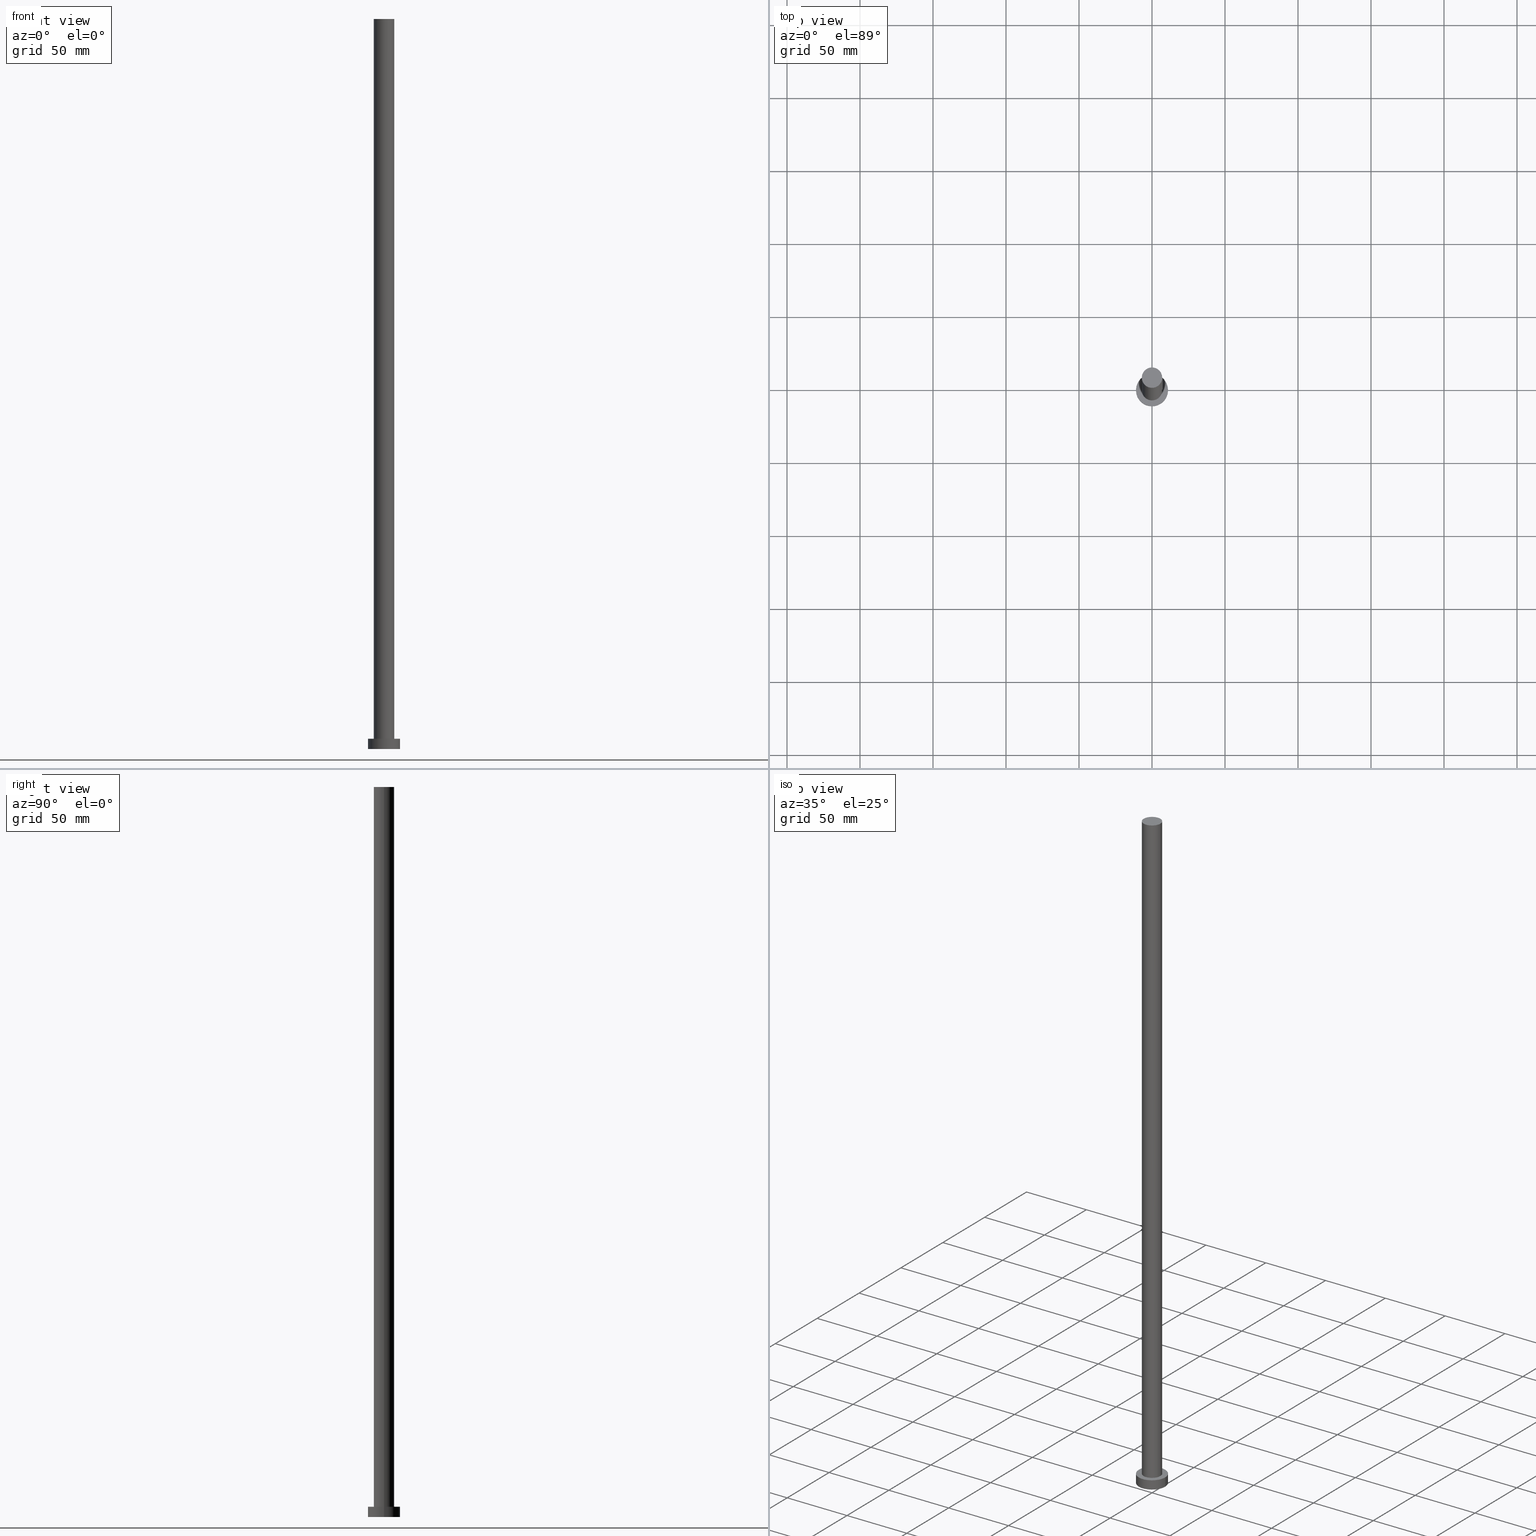
[diagram: canonical four-view strip — front | top / right | iso, engineering-drawing reading convention]
A machine part, canonical four-view strip (front | top / right | iso — engineering-drawing reading convention). The complete STEP part file that produces these views, byte-faithful:
ISO-10303-21;
HEADER;
FILE_DESCRIPTION (( 'STEP AP203' ),
    '1' );
FILE_NAME ('4721.STEP',
    '2023-02-13T10:35:01',
    ( '' ),
    ( '' ),
    'SwSTEP 2.0',
    'SolidWorks 2019',
    '' );
FILE_SCHEMA (( 'CONFIG_CONTROL_DESIGN' ));
ENDSEC;

DATA;
#1 = APPROVAL_PERSON_ORGANIZATION ( #121, #88, #105 ) ;
#2 = EDGE_LOOP ( 'NONE', ( #104, #236, #153, #157 ) ) ;
#3 = APPROVAL_DATE_TIME ( #178, #88 ) ;
#4 = CARTESIAN_POINT ( 'NONE',  ( 11.00000000000000000, 1.347111479062088405E-15, 7.000000000000000000 ) ) ;
#5 = ORIENTED_EDGE ( 'NONE', *, *, #124, .F. ) ;
#6 = APPROVAL_STATUS ( 'not_yet_approved' ) ;
#7 = DIRECTION ( 'NONE',  ( -0.000000000000000000, -0.000000000000000000, -1.000000000000000000 ) ) ;
#8 = ADVANCED_FACE ( 'NONE', ( #188 ), #132, .T. ) ;
#9 = APPLICATION_PROTOCOL_DEFINITION ( 'international standard', 'config_control_design', 1994, #152 ) ;
#10 = APPROVAL_PERSON_ORGANIZATION ( #110, #78, #185 ) ;
#11 = VERTEX_POINT ( 'NONE', #83 ) ;
#12 =( NAMED_UNIT ( * ) SI_UNIT ( $, .STERADIAN. ) SOLID_ANGLE_UNIT ( ) );
#13 = PRODUCT_DEFINITION ( 'NEZN�M�', '', #73, #164 ) ;
#14 = AXIS2_PLACEMENT_3D ( 'NONE', #49, #36, #75 ) ;
#15 = DIRECTION ( 'NONE',  ( 1.000000000000000000, 0.000000000000000000, 0.000000000000000000 ) ) ;
#16 = DIRECTION ( 'NONE',  ( -0.000000000000000000, -0.000000000000000000, -1.000000000000000000 ) ) ;
#17 = PERSON_AND_ORGANIZATION ( #238, #33 ) ;
#18 = CARTESIAN_POINT ( 'NONE',  ( -7.000000000000000888, 0.000000000000000000, 500.0000000000000000 ) ) ;
#19 = ADVANCED_FACE ( 'NONE', ( #97 ), #60, .F. ) ;
#20 = LOCAL_TIME ( 11, 35, 1.000000000000000000, #160 ) ;
#21 = DIRECTION ( 'NONE',  ( -1.000000000000000000, 0.000000000000000000, 0.000000000000000000 ) ) ;
#22 = VERTEX_POINT ( 'NONE', #189 ) ;
#23 = VERTEX_POINT ( 'NONE', #210 ) ;
#24 = DIRECTION ( 'NONE',  ( -1.000000000000000000, 0.000000000000000000, 0.000000000000000000 ) ) ;
#25 =( GEOMETRIC_REPRESENTATION_CONTEXT ( 3 ) GLOBAL_UNCERTAINTY_ASSIGNED_CONTEXT ( ( #220 ) ) GLOBAL_UNIT_ASSIGNED_CONTEXT ( ( #166, #181, #12 ) ) REPRESENTATION_CONTEXT ( 'NONE', 'WORKASPACE' ) );
#26 = CARTESIAN_POINT ( 'NONE',  ( 0.000000000000000000, 0.000000000000000000, 7.000000000000000000 ) ) ;
#27 = CLOSED_SHELL ( 'NONE', ( #8, #137, #182, #229, #19, #138, #57 ) ) ;
#28 = DIRECTION ( 'NONE',  ( 1.000000000000000000, 0.000000000000000000, -0.000000000000000000 ) ) ;
#29 = COORDINATED_UNIVERSAL_TIME_OFFSET ( 1, 0, .AHEAD. ) ;
#30 = APPROVAL_DATE_TIME ( #89, #222 ) ;
#31 = DIRECTION ( 'NONE',  ( 0.000000000000000000, 0.000000000000000000, 1.000000000000000000 ) ) ;
#32 = APPLICATION_PROTOCOL_DEFINITION ( 'international standard', 'config_control_design', 1994, #117 ) ;
#33 = ORGANIZATION ( 'NEUR�EN�', 'NEUR�EN�', '' ) ;
#34 = ORIENTED_EDGE ( 'NONE', *, *, #253, .F. ) ;
#35 = LOCAL_TIME ( 11, 35, 1.000000000000000000, #29 ) ;
#36 = DIRECTION ( 'NONE',  ( 0.000000000000000000, 0.000000000000000000, 1.000000000000000000 ) ) ;
#37 = PERSON_AND_ORGANIZATION_ROLE ( 'creator' ) ;
#38 = CARTESIAN_POINT ( 'NONE',  ( 0.000000000000000000, 0.000000000000000000, 7.000000000000000000 ) ) ;
#39 = APPROVAL_DATE_TIME ( #224, #78 ) ;
#40 = LINE ( 'NONE', #4, #235 ) ;
#41 = PERSON_AND_ORGANIZATION_ROLE ( 'creator' ) ;
#42 = AXIS2_PLACEMENT_3D ( 'NONE', #135, #134, #209 ) ;
#43 = ORIENTED_EDGE ( 'NONE', *, *, #91, .F. ) ;
#44 = DIRECTION ( 'NONE',  ( 1.000000000000000000, 0.000000000000000000, 0.000000000000000000 ) ) ;
#45 = EDGE_LOOP ( 'NONE', ( #249, #64, #102, #119 ) ) ;
#46 = COORDINATED_UNIVERSAL_TIME_OFFSET ( 1, 0, .AHEAD. ) ;
#47 = EDGE_CURVE ( 'NONE', #23, #22, #180, .T. ) ;
#48 = EDGE_LOOP ( 'NONE', ( #243, #34 ) ) ;
#49 = CARTESIAN_POINT ( 'NONE',  ( 0.000000000000000000, 0.000000000000000000, 7.000000000000000000 ) ) ;
#50 = CIRCLE ( 'NONE', #183, 11.00000000000000000 ) ;
#51 = CYLINDRICAL_SURFACE ( 'NONE', #106, 11.00000000000000000 ) ;
#52 = LOCAL_TIME ( 11, 35, 1.000000000000000000, #114 ) ;
#53 = EDGE_CURVE ( 'NONE', #23, #233, #74, .T. ) ;
#54 = DIRECTION ( 'NONE',  ( -0.000000000000000000, -0.000000000000000000, -1.000000000000000000 ) ) ;
#55 = DIRECTION ( 'NONE',  ( 1.000000000000000000, 0.000000000000000000, 0.000000000000000000 ) ) ;
#56 = DIRECTION ( 'NONE',  ( -0.000000000000000000, -0.000000000000000000, -1.000000000000000000 ) ) ;
#57 = ADVANCED_FACE ( 'NONE', ( #131 ), #112, .T. ) ;
#58 = CC_DESIGN_APPROVAL ( #222, ( #73 ) ) ;
#59 = EDGE_LOOP ( 'NONE', ( #204, #171, #159, #176 ) ) ;
#60 = PLANE ( 'NONE',  #42 ) ;
#61 = ORIENTED_EDGE ( 'NONE', *, *, #109, .T. ) ;
#62 = PERSON_AND_ORGANIZATION ( #238, #33 ) ;
#63 = MANIFOLD_SOLID_BREP ( 'P�idat vysunut�m3', #27 ) ;
#64 = ORIENTED_EDGE ( 'NONE', *, *, #91, .T. ) ;
#65 = DIRECTION ( 'NONE',  ( 0.000000000000000000, 0.000000000000000000, 1.000000000000000000 ) ) ;
#66 = CARTESIAN_POINT ( 'NONE',  ( 0.000000000000000000, 0.000000000000000000, 500.0000000000000000 ) ) ;
#67 = PERSON_AND_ORGANIZATION ( #238, #33 ) ;
#68 = CC_DESIGN_PERSON_AND_ORGANIZATION_ASSIGNMENT ( #17, #144, ( #172 ) ) ;
#69 = AXIS2_PLACEMENT_3D ( 'NONE', #201, #184, #15 ) ;
#70 = FACE_OUTER_BOUND ( 'NONE', #59, .T. ) ;
#71 = DIRECTION ( 'NONE',  ( 1.000000000000000000, 0.000000000000000000, 0.000000000000000000 ) ) ;
#72 = DIRECTION ( 'NONE',  ( -1.000000000000000000, 0.000000000000000000, 0.000000000000000000 ) ) ;
#73 = PRODUCT_DEFINITION_FORMATION_WITH_SPECIFIED_SOURCE ( 'LIBOVOLN�', '', #172, .NOT_KNOWN. ) ;
#74 = LINE ( 'NONE', #221, #203 ) ;
#75 = DIRECTION ( 'NONE',  ( 1.000000000000000000, 0.000000000000000000, -0.000000000000000000 ) ) ;
#76 = DIRECTION ( 'NONE',  ( 0.000000000000000000, 0.000000000000000000, 1.000000000000000000 ) ) ;
#77 = CARTESIAN_POINT ( 'NONE',  ( 0.000000000000000000, 0.000000000000000000, 500.0000000000000000 ) ) ;
#78 = APPROVAL ( #147, 'NEUR�EN�' ) ;
#79 = CARTESIAN_POINT ( 'NONE',  ( 0.000000000000000000, 0.000000000000000000, 500.0000000000000000 ) ) ;
#80 = AXIS2_PLACEMENT_3D ( 'NONE', #79, #95, #21 ) ;
#81 = CYLINDRICAL_SURFACE ( 'NONE', #80, 7.000000000000000888 ) ;
#82 = ORIENTED_EDGE ( 'NONE', *, *, #84, .F. ) ;
#83 = CARTESIAN_POINT ( 'NONE',  ( 7.000000000000000888, 8.572527594031474176E-16, 7.000000000000000000 ) ) ;
#84 = EDGE_CURVE ( 'NONE', #133, #233, #212, .T. ) ;
#85 = AXIS2_PLACEMENT_3D ( 'NONE', #77, #228, #24 ) ;
#86 = CARTESIAN_POINT ( 'NONE',  ( 0.000000000000000000, 0.000000000000000000, 500.0000000000000000 ) ) ;
#87 = AXIS2_PLACEMENT_3D ( 'NONE', #116, #200, #241 ) ;
#88 = APPROVAL ( #198, 'NEUR�EN�' ) ;
#89 = DATE_AND_TIME ( #139, #206 ) ;
#90 = VERTEX_POINT ( 'NONE', #126 ) ;
#91 = EDGE_CURVE ( 'NONE', #142, #11, #100, .T. ) ;
#92 = MECHANICAL_CONTEXT ( 'NONE', #117, 'mechanical' ) ;
#93 = EDGE_LOOP ( 'NONE', ( #5, #82 ) ) ;
#94 = CALENDAR_DATE ( 2023, 13, 2 ) ;
#95 = DIRECTION ( 'NONE',  ( -0.000000000000000000, -0.000000000000000000, -1.000000000000000000 ) ) ;
#96 = VECTOR ( 'NONE', #7, 1000.000000000000000 ) ;
#97 = FACE_OUTER_BOUND ( 'NONE', #93, .T. ) ;
#98 = PERSON_AND_ORGANIZATION ( #238, #33 ) ;
#99 = EDGE_CURVE ( 'NONE', #22, #133, #40, .T. ) ;
#100 = LINE ( 'NONE', #174, #96 ) ;
#101 = DATE_TIME_ROLE ( 'classification_date' ) ;
#102 = ORIENTED_EDGE ( 'NONE', *, *, #253, .T. ) ;
#103 = CALENDAR_DATE ( 2023, 13, 2 ) ;
#104 = ORIENTED_EDGE ( 'NONE', *, *, #167, .F. ) ;
#105 = APPROVAL_ROLE ( '' ) ;
#106 = AXIS2_PLACEMENT_3D ( 'NONE', #128, #54, #72 ) ;
#107 = ADVANCED_BREP_SHAPE_REPRESENTATION ( '4721', ( #63, #214 ), #25 ) ;
#108 = AXIS2_PLACEMENT_3D ( 'NONE', #38, #231, #111 ) ;
#109 = EDGE_CURVE ( 'NONE', #142, #252, #230, .T. ) ;
#110 = PERSON_AND_ORGANIZATION ( #238, #33 ) ;
#111 = DIRECTION ( 'NONE',  ( -1.000000000000000000, 0.000000000000000000, 0.000000000000000000 ) ) ;
#112 = PLANE ( 'NONE',  #208 ) ;
#113 = LOCAL_TIME ( 11, 35, 1.000000000000000000, #156 ) ;
#114 = COORDINATED_UNIVERSAL_TIME_OFFSET ( 1, 0, .AHEAD. ) ;
#115 = DIRECTION ( 'NONE',  ( 1.000000000000000000, 0.000000000000000000, 0.000000000000000000 ) ) ;
#116 = CARTESIAN_POINT ( 'NONE',  ( 0.000000000000000000, 0.000000000000000000, 500.0000000000000000 ) ) ;
#117 = APPLICATION_CONTEXT ( 'configuration controlled 3d designs of mechanical parts and assemblies' ) ;
#118 = APPROVAL_PERSON_ORGANIZATION ( #67, #222, #158 ) ;
#119 = ORIENTED_EDGE ( 'NONE', *, *, #205, .F. ) ;
#120 = SHAPE_DEFINITION_REPRESENTATION ( #129, #107 ) ;
#121 = PERSON_AND_ORGANIZATION ( #238, #33 ) ;
#122 = DATE_AND_TIME ( #94, #52 ) ;
#123 = CALENDAR_DATE ( 2023, 13, 2 ) ;
#124 = EDGE_CURVE ( 'NONE', #233, #133, #50, .T. ) ;
#125 = AXIS2_PLACEMENT_3D ( 'NONE', #145, #192, #44 ) ;
#126 = CARTESIAN_POINT ( 'NONE',  ( -7.000000000000000888, 0.000000000000000000, 7.000000000000000000 ) ) ;
#127 = CC_DESIGN_PERSON_AND_ORGANIZATION_ASSIGNMENT ( #62, #239, ( #251 ) ) ;
#128 = CARTESIAN_POINT ( 'NONE',  ( 0.000000000000000000, 0.000000000000000000, 7.000000000000000000 ) ) ;
#129 = PRODUCT_DEFINITION_SHAPE ( 'NONE', 'NONE',  #13 ) ;
#130 = CYLINDRICAL_SURFACE ( 'NONE', #108, 11.00000000000000000 ) ;
#131 = FACE_OUTER_BOUND ( 'NONE', #190, .T. ) ;
#132 = CYLINDRICAL_SURFACE ( 'NONE', #85, 7.000000000000000888 ) ;
#133 = VERTEX_POINT ( 'NONE', #218 ) ;
#134 = DIRECTION ( 'NONE',  ( 0.000000000000000000, 0.000000000000000000, 1.000000000000000000 ) ) ;
#135 = CARTESIAN_POINT ( 'NONE',  ( 0.000000000000000000, 0.000000000000000000, 0.000000000000000000 ) ) ;
#136 = AXIS2_PLACEMENT_3D ( 'NONE', #223, #244, #71 ) ;
#137 = ADVANCED_FACE ( 'NONE', ( #150 ), #130, .T. ) ;
#138 = ADVANCED_FACE ( 'NONE', ( #186 ), #81, .T. ) ;
#139 = CALENDAR_DATE ( 2023, 13, 2 ) ;
#140 = ORIENTED_EDGE ( 'NONE', *, *, #205, .T. ) ;
#141 = DATE_AND_TIME ( #123, #35 ) ;
#142 = VERTEX_POINT ( 'NONE', #170 ) ;
#143 = CC_DESIGN_SECURITY_CLASSIFICATION ( #251, ( #73 ) ) ;
#144 = PERSON_AND_ORGANIZATION_ROLE ( 'design_owner' ) ;
#145 = CARTESIAN_POINT ( 'NONE',  ( 0.000000000000000000, 0.000000000000000000, 0.000000000000000000 ) ) ;
#146 = CARTESIAN_POINT ( 'NONE',  ( -11.00000000000000000, 0.000000000000000000, 0.000000000000000000 ) ) ;
#147 = APPROVAL_STATUS ( 'not_yet_approved' ) ;
#148 = CARTESIAN_POINT ( 'NONE',  ( 0.000000000000000000, 0.000000000000000000, 0.000000000000000000 ) ) ;
#149 = CARTESIAN_POINT ( 'NONE',  ( -7.000000000000000888, 0.000000000000000000, 500.0000000000000000 ) ) ;
#150 = FACE_OUTER_BOUND ( 'NONE', #2, .T. ) ;
#151 = CIRCLE ( 'NONE', #87, 7.000000000000000888 ) ;
#152 = APPLICATION_CONTEXT ( 'configuration controlled 3d designs of mechanical parts and assemblies' ) ;
#153 = ORIENTED_EDGE ( 'NONE', *, *, #84, .T. ) ;
#154 = CARTESIAN_POINT ( 'NONE',  ( 0.000000000000000000, 0.000000000000000000, 0.000000000000000000 ) ) ;
#155 = EDGE_CURVE ( 'NONE', #90, #11, #245, .T. ) ;
#156 = COORDINATED_UNIVERSAL_TIME_OFFSET ( 1, 0, .AHEAD. ) ;
#157 = ORIENTED_EDGE ( 'NONE', *, *, #53, .F. ) ;
#158 = APPROVAL_ROLE ( '' ) ;
#159 = ORIENTED_EDGE ( 'NONE', *, *, #53, .T. ) ;
#160 = COORDINATED_UNIVERSAL_TIME_OFFSET ( 1, 0, .AHEAD. ) ;
#161 = CC_DESIGN_APPROVAL ( #78, ( #13 ) ) ;
#162 = PRODUCT_RELATED_PRODUCT_CATEGORY ( 'detail', '', ( #172 ) ) ;
#163 = EDGE_CURVE ( 'NONE', #252, #142, #151, .T. ) ;
#164 = DESIGN_CONTEXT ( 'detailed design', #152, 'design' ) ;
#165 = LINE ( 'NONE', #18, #225 ) ;
#166 =( LENGTH_UNIT ( ) NAMED_UNIT ( * ) SI_UNIT ( .MILLI., .METRE. ) );
#167 = EDGE_CURVE ( 'NONE', #22, #23, #219, .T. ) ;
#168 = CC_DESIGN_APPROVAL ( #88, ( #251 ) ) ;
#169 = FACE_OUTER_BOUND ( 'NONE', #227, .T. ) ;
#170 = CARTESIAN_POINT ( 'NONE',  ( 7.000000000000000888, 8.572527594031474176E-16, 500.0000000000000000 ) ) ;
#171 = ORIENTED_EDGE ( 'NONE', *, *, #47, .F. ) ;
#172 = PRODUCT ( '4721', '4721', '', ( #92 ) ) ;
#173 = PERSON_AND_ORGANIZATION_ROLE ( 'design_supplier' ) ;
#174 = CARTESIAN_POINT ( 'NONE',  ( 7.000000000000000888, 8.572527594031474176E-16, 500.0000000000000000 ) ) ;
#175 = EDGE_LOOP ( 'NONE', ( #43, #211, #140, #216 ) ) ;
#176 = ORIENTED_EDGE ( 'NONE', *, *, #124, .T. ) ;
#177 = ORIENTED_EDGE ( 'NONE', *, *, #163, .T. ) ;
#178 = DATE_AND_TIME ( #194, #113 ) ;
#179 = CC_DESIGN_DATE_AND_TIME_ASSIGNMENT ( #122, #237, ( #13 ) ) ;
#180 = CIRCLE ( 'NONE', #197, 11.00000000000000000 ) ;
#181 =( NAMED_UNIT ( * ) PLANE_ANGLE_UNIT ( ) SI_UNIT ( $, .RADIAN. ) );
#182 = ADVANCED_FACE ( 'NONE', ( #70 ), #51, .T. ) ;
#183 = AXIS2_PLACEMENT_3D ( 'NONE', #154, #31, #240 ) ;
#184 = DIRECTION ( 'NONE',  ( 0.000000000000000000, 0.000000000000000000, 1.000000000000000000 ) ) ;
#185 = APPROVAL_ROLE ( '' ) ;
#186 = FACE_OUTER_BOUND ( 'NONE', #175, .T. ) ;
#187 = CC_DESIGN_PERSON_AND_ORGANIZATION_ASSIGNMENT ( #255, #173, ( #73 ) ) ;
#188 = FACE_OUTER_BOUND ( 'NONE', #45, .T. ) ;
#189 = CARTESIAN_POINT ( 'NONE',  ( 11.00000000000000000, 1.347111479062088405E-15, 7.000000000000000000 ) ) ;
#190 = EDGE_LOOP ( 'NONE', ( #177, #61 ) ) ;
#191 = PERSON_AND_ORGANIZATION ( #238, #33 ) ;
#192 = DIRECTION ( 'NONE',  ( 0.000000000000000000, 0.000000000000000000, 1.000000000000000000 ) ) ;
#193 = CIRCLE ( 'NONE', #136, 7.000000000000000888 ) ;
#194 = CALENDAR_DATE ( 2023, 13, 2 ) ;
#195 = DIRECTION ( 'NONE',  ( 0.000000000000000000, 0.000000000000000000, 1.000000000000000000 ) ) ;
#196 = DIRECTION ( 'NONE',  ( 1.000000000000000000, 0.000000000000000000, 0.000000000000000000 ) ) ;
#197 = AXIS2_PLACEMENT_3D ( 'NONE', #26, #207, #247 ) ;
#198 = APPROVAL_STATUS ( 'not_yet_approved' ) ;
#199 = DIRECTION ( 'NONE',  ( 0.000000000000000000, 0.000000000000000000, 1.000000000000000000 ) ) ;
#200 = DIRECTION ( 'NONE',  ( 0.000000000000000000, 0.000000000000000000, 1.000000000000000000 ) ) ;
#201 = CARTESIAN_POINT ( 'NONE',  ( 0.000000000000000000, 0.000000000000000000, 7.000000000000000000 ) ) ;
#202 = CC_DESIGN_DATE_AND_TIME_ASSIGNMENT ( #141, #101, ( #251 ) ) ;
#203 = VECTOR ( 'NONE', #56, 1000.000000000000000 ) ;
#204 = ORIENTED_EDGE ( 'NONE', *, *, #99, .F. ) ;
#205 = EDGE_CURVE ( 'NONE', #252, #90, #165, .T. ) ;
#206 = LOCAL_TIME ( 11, 35, 1.000000000000000000, #46 ) ;
#207 = DIRECTION ( 'NONE',  ( 0.000000000000000000, 0.000000000000000000, 1.000000000000000000 ) ) ;
#208 = AXIS2_PLACEMENT_3D ( 'NONE', #66, #195, #28 ) ;
#209 = DIRECTION ( 'NONE',  ( 1.000000000000000000, 0.000000000000000000, -0.000000000000000000 ) ) ;
#210 = CARTESIAN_POINT ( 'NONE',  ( -11.00000000000000000, 0.000000000000000000, 7.000000000000000000 ) ) ;
#211 = ORIENTED_EDGE ( 'NONE', *, *, #163, .F. ) ;
#212 = CIRCLE ( 'NONE', #125, 11.00000000000000000 ) ;
#213 = CC_DESIGN_PERSON_AND_ORGANIZATION_ASSIGNMENT ( #98, #37, ( #13 ) ) ;
#214 = AXIS2_PLACEMENT_3D ( 'NONE', #148, #199, #55 ) ;
#215 = ORIENTED_EDGE ( 'NONE', *, *, #167, .T. ) ;
#216 = ORIENTED_EDGE ( 'NONE', *, *, #155, .T. ) ;
#217 = SECURITY_CLASSIFICATION_LEVEL ( 'unclassified' ) ;
#218 = CARTESIAN_POINT ( 'NONE',  ( 11.00000000000000000, 1.347111479062088405E-15, 0.000000000000000000 ) ) ;
#219 = CIRCLE ( 'NONE', #69, 11.00000000000000000 ) ;
#220 = UNCERTAINTY_MEASURE_WITH_UNIT (LENGTH_MEASURE( 1.000000000000000082E-05 ), #166, 'distance_accuracy_value', 'NONE');
#221 = CARTESIAN_POINT ( 'NONE',  ( -11.00000000000000000, 0.000000000000000000, 7.000000000000000000 ) ) ;
#222 = APPROVAL ( #6, 'NEUR�EN�' ) ;
#223 = CARTESIAN_POINT ( 'NONE',  ( 0.000000000000000000, 0.000000000000000000, 7.000000000000000000 ) ) ;
#224 = DATE_AND_TIME ( #103, #20 ) ;
#225 = VECTOR ( 'NONE', #16, 1000.000000000000000 ) ;
#226 = CARTESIAN_POINT ( 'NONE',  ( 0.000000000000000000, 0.000000000000000000, 7.000000000000000000 ) ) ;
#227 = EDGE_LOOP ( 'NONE', ( #232, #215 ) ) ;
#228 = DIRECTION ( 'NONE',  ( -0.000000000000000000, -0.000000000000000000, -1.000000000000000000 ) ) ;
#229 = ADVANCED_FACE ( 'NONE', ( #242, #169 ), #248, .T. ) ;
#230 = CIRCLE ( 'NONE', #250, 7.000000000000000888 ) ;
#231 = DIRECTION ( 'NONE',  ( -0.000000000000000000, -0.000000000000000000, -1.000000000000000000 ) ) ;
#232 = ORIENTED_EDGE ( 'NONE', *, *, #47, .T. ) ;
#233 = VERTEX_POINT ( 'NONE', #146 ) ;
#234 = CC_DESIGN_PERSON_AND_ORGANIZATION_ASSIGNMENT ( #191, #41, ( #73 ) ) ;
#235 = VECTOR ( 'NONE', #254, 1000.000000000000000 ) ;
#236 = ORIENTED_EDGE ( 'NONE', *, *, #99, .T. ) ;
#237 = DATE_TIME_ROLE ( 'creation_date' ) ;
#238 = PERSON ( 'NEUR�EN�', 'NEUR�EN�', 'NEUR�EN�', ('NEUR�EN�'), ('NEUR�EN�'), ('NEUR�EN�') ) ;
#239 = PERSON_AND_ORGANIZATION_ROLE ( 'classification_officer' ) ;
#240 = DIRECTION ( 'NONE',  ( 1.000000000000000000, 0.000000000000000000, 0.000000000000000000 ) ) ;
#241 = DIRECTION ( 'NONE',  ( 1.000000000000000000, 0.000000000000000000, 0.000000000000000000 ) ) ;
#242 = FACE_BOUND ( 'NONE', #48, .T. ) ;
#243 = ORIENTED_EDGE ( 'NONE', *, *, #155, .F. ) ;
#244 = DIRECTION ( 'NONE',  ( 0.000000000000000000, 0.000000000000000000, 1.000000000000000000 ) ) ;
#245 = CIRCLE ( 'NONE', #246, 7.000000000000000888 ) ;
#246 = AXIS2_PLACEMENT_3D ( 'NONE', #226, #76, #115 ) ;
#247 = DIRECTION ( 'NONE',  ( 1.000000000000000000, 0.000000000000000000, 0.000000000000000000 ) ) ;
#248 = PLANE ( 'NONE',  #14 ) ;
#249 = ORIENTED_EDGE ( 'NONE', *, *, #109, .F. ) ;
#250 = AXIS2_PLACEMENT_3D ( 'NONE', #86, #65, #196 ) ;
#251 = SECURITY_CLASSIFICATION ( '', '', #217 ) ;
#252 = VERTEX_POINT ( 'NONE', #149 ) ;
#253 = EDGE_CURVE ( 'NONE', #11, #90, #193, .T. ) ;
#254 = DIRECTION ( 'NONE',  ( -0.000000000000000000, -0.000000000000000000, -1.000000000000000000 ) ) ;
#255 = PERSON_AND_ORGANIZATION ( #238, #33 ) ;
ENDSEC;
END-ISO-10303-21;
